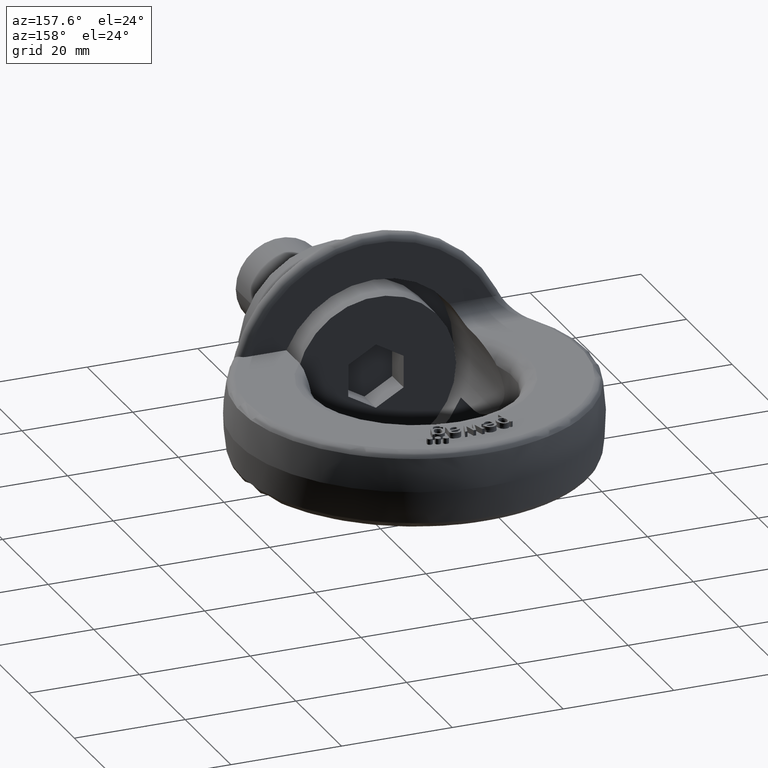
[diagram: clean part render]
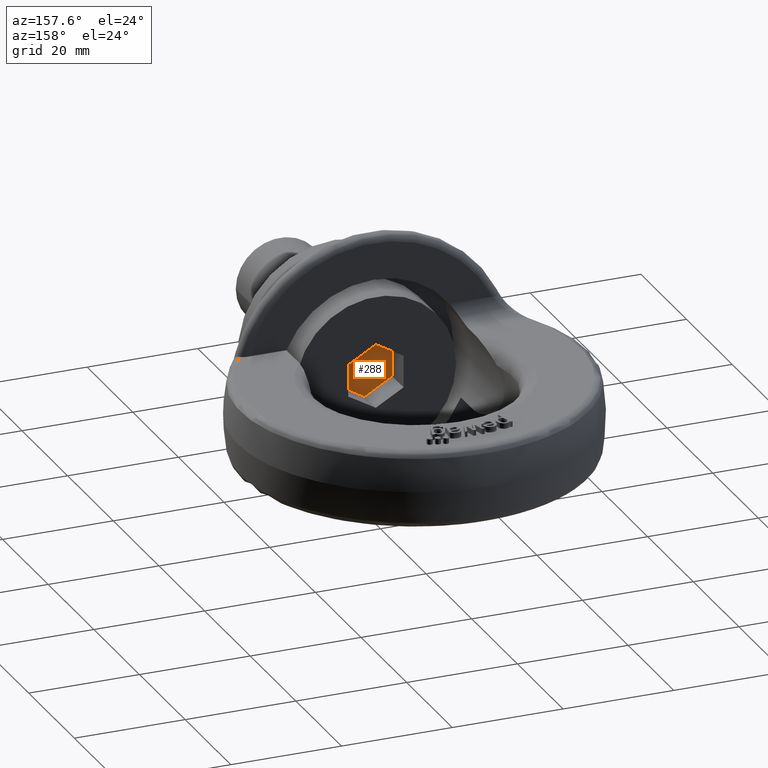
[diagram: same view with one face highlighted and labeled with its STEP entity id]
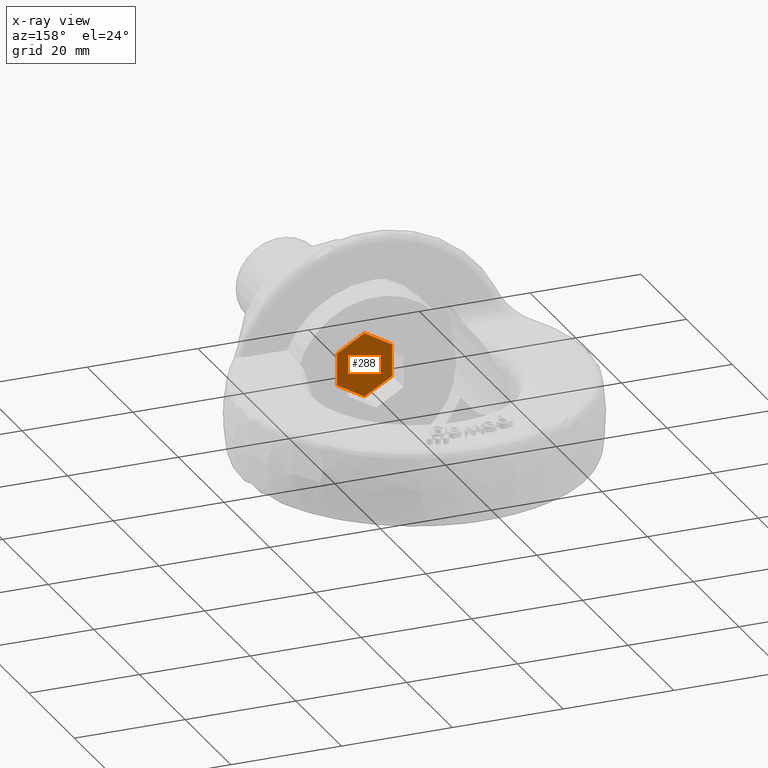
[diagram: x-ray of the same camera — body ghosted, the highlighted face saturated]
A machine part, auxiliary view. The second image highlights one B-rep face of the part: STEP entity #288.
The next image is the same camera in x-ray: the body ghosted, the highlighted face saturated — about 0% of this face is hidden behind the body in this view.
In plain terms, the highlighted planar face has unit normal (0, -1, 0).
Its self-contained STEP definition (entity closure, byte-faithful):
#132=FACE_OUTER_BOUND('',#669,.T.);
#288=ADVANCED_FACE('',(#132),#454,.F.);
#454=PLANE('',#3071);
#669=EDGE_LOOP('',(#1395,#1396,#1397,#1398,#1399,#1400));
#886=LINE('',#4208,#1070);
#888=LINE('',#4212,#1072);
#890=LINE('',#4216,#1074);
#893=LINE('',#4222,#1077);
#894=LINE('',#4224,#1078);
#895=LINE('',#4226,#1079);
#1070=VECTOR('',#3292,1.);
#1072=VECTOR('',#3296,1.);
#1074=VECTOR('',#3300,1.);
#1077=VECTOR('',#3305,1.);
#1078=VECTOR('',#3308,1.);
#1079=VECTOR('',#3309,1.);
#1395=ORIENTED_EDGE('',*,*,#2479,.T.);
#1396=ORIENTED_EDGE('',*,*,#2480,.T.);
#1397=ORIENTED_EDGE('',*,*,#2481,.T.);
#1398=ORIENTED_EDGE('',*,*,#2476,.T.);
#1399=ORIENTED_EDGE('',*,*,#2474,.T.);
#1400=ORIENTED_EDGE('',*,*,#2472,.T.);
#2185=VERTEX_POINT('',#4207);
#2186=VERTEX_POINT('',#4209);
#2187=VERTEX_POINT('',#4213);
#2188=VERTEX_POINT('',#4217);
#2189=VERTEX_POINT('',#4221);
#2190=VERTEX_POINT('',#4225);
#2472=EDGE_CURVE('',#2186,#2185,#886,.T.);
#2474=EDGE_CURVE('',#2187,#2186,#888,.T.);
#2476=EDGE_CURVE('',#2188,#2187,#890,.T.);
#2479=EDGE_CURVE('',#2185,#2189,#893,.T.);
#2480=EDGE_CURVE('',#2189,#2190,#894,.T.);
#2481=EDGE_CURVE('',#2190,#2188,#895,.T.);
#3071=AXIS2_PLACEMENT_3D('',#4227,#3310,#3311);
#3292=DIRECTION('',(0.866025403784441,0.,-0.499999999999995));
#3296=DIRECTION('',(0.866025403784441,0.,0.499999999999995));
#3300=DIRECTION('',(0.,0.,1.));
#3305=DIRECTION('',(0.,0.,-1.));
#3308=DIRECTION('',(-0.86602540378444,0.,-0.499999999999997));
#3309=DIRECTION('',(-0.866025403784443,0.,0.499999999999993));
#3310=DIRECTION('',(0.,-1.,0.));
#3311=DIRECTION('',(0.,0.,-1.));
#4207=CARTESIAN_POINT('',(5.,13.,2.88675134594812));
#4208=CARTESIAN_POINT('',(5.,13.,2.88675134594812));
#4209=CARTESIAN_POINT('',(0.,13.,5.77350269189621));
#4212=CARTESIAN_POINT('',(0.,13.,5.77350269189621));
#4213=CARTESIAN_POINT('',(-5.,13.,2.88675134594812));
#4216=CARTESIAN_POINT('',(-5.,13.,2.88675134594812));
#4217=CARTESIAN_POINT('',(-4.99999999999999,13.,-2.88675134594813));
#4221=CARTESIAN_POINT('',(5.00000000000001,13.,-2.88675134594811));
#4222=CARTESIAN_POINT('',(5.,13.,-2.88675134594812));
#4224=CARTESIAN_POINT('',(1.35268014017069E-14,13.,-5.77350269189621));
#4225=CARTESIAN_POINT('',(1.35268014017069E-14,13.,-5.77350269189621));
#4226=CARTESIAN_POINT('',(-4.99999999999999,13.,-2.88675134594813));
#4227=CARTESIAN_POINT('',(0.,13.,0.));